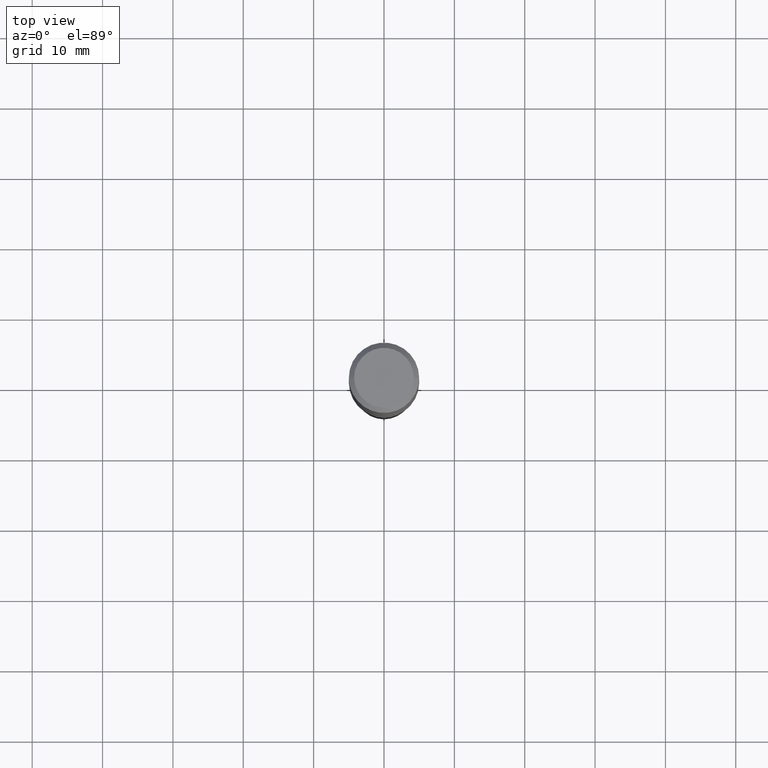
[diagram: clean part render]
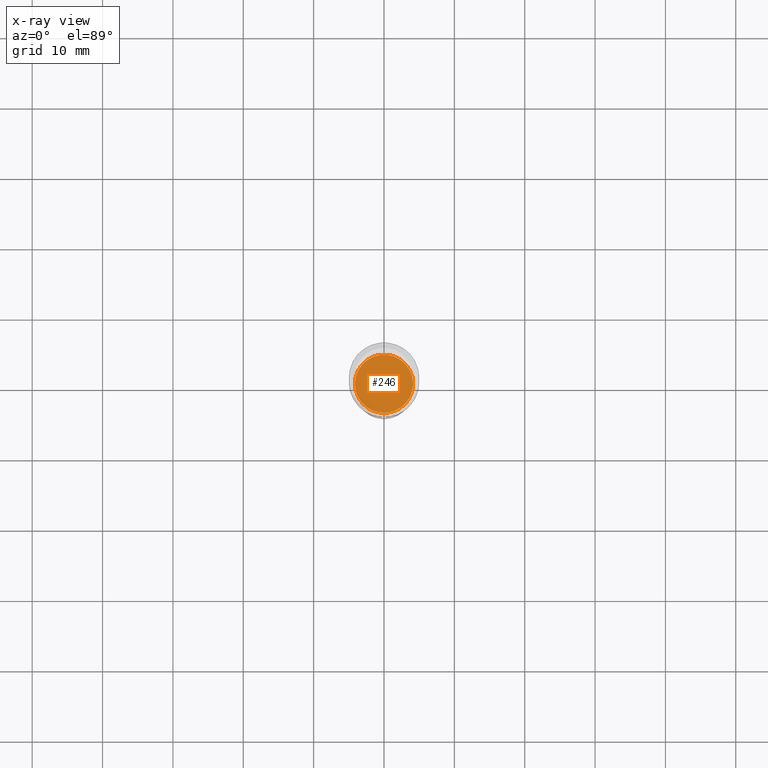
[diagram: x-ray — body ghosted, one internal face saturated and labeled with its STEP entity id]
A machine part, top view, then the same camera in x-ray: the body is ghosted and one INTERNAL B-rep face — a face not visible from any outside direction — is saturated and labeled: STEP entity #246.
In plain terms, the highlighted planar face has unit normal (-0, 0, 1).
Its self-contained STEP definition (entity closure, byte-faithful):
#11 = VERTEX_POINT ( 'NONE', #368 ) ;
#22 = CARTESIAN_POINT ( 'NONE',  ( 0.1628999999999999893, -8.051705115506173515E-15, -1.980299999999999949 ) ) ;
#105 = CARTESIAN_POINT ( 'NONE',  ( 4.842761876888425335E-29, -6.914180495311080769E-15, -1.980299999999999949 ) ) ;
#110 = CIRCLE ( 'NONE', #463, 0.1628999999999999893 ) ;
#114 = DIRECTION ( 'NONE',  ( -2.438088387897960049E-29, 3.491481338843145188E-15, 1.000000000000000000 ) ) ;
#116 = CARTESIAN_POINT ( 'NONE',  ( 4.842761876888425335E-29, -6.914180495311080769E-15, -1.980299999999999949 ) ) ;
#119 = DIRECTION ( 'NONE',  ( -2.445468806185136597E-29, 3.491481338843145583E-15, 1.000000000000000000 ) ) ;
#146 = ORIENTED_EDGE ( 'NONE', *, *, #390, .F. ) ;
#219 = AXIS2_PLACEMENT_3D ( 'NONE', #448, #119, #338 ) ;
#234 = DIRECTION ( 'NONE',  ( -2.445468806185136597E-29, 3.491481338843145583E-15, 1.000000000000000000 ) ) ;
#246 = ADVANCED_FACE ( 'NONE', ( #413 ), #439, .F. ) ;
#285 = VERTEX_POINT ( 'NONE', #22 ) ;
#338 = DIRECTION ( 'NONE',  ( 1.000000000000000000, -6.982962677686269077E-15, 0.000000000000000000 ) ) ;
#339 = DIRECTION ( 'NONE',  ( 1.000000000000000000, -6.982962677686269077E-15, 0.000000000000000000 ) ) ;
#365 = AXIS2_PLACEMENT_3D ( 'NONE', #105, #114, #476 ) ;
#368 = CARTESIAN_POINT ( 'NONE',  ( -0.1628999999999999893, -5.754057151583766836E-15, -1.980299999999999949 ) ) ;
#384 = ORIENTED_EDGE ( 'NONE', *, *, #450, .F. ) ;
#390 = EDGE_CURVE ( 'NONE', #11, #285, #480, .T. ) ;
#398 = EDGE_LOOP ( 'NONE', ( #384, #146 ) ) ;
#413 = FACE_OUTER_BOUND ( 'NONE', #398, .T. ) ;
#439 = PLANE ( 'NONE',  #365 ) ;
#448 = CARTESIAN_POINT ( 'NONE',  ( 4.842761876888425335E-29, -6.914180495311080769E-15, -1.980299999999999949 ) ) ;
#450 = EDGE_CURVE ( 'NONE', #285, #11, #110, .T. ) ;
#463 = AXIS2_PLACEMENT_3D ( 'NONE', #116, #234, #339 ) ;
#476 = DIRECTION ( 'NONE',  ( 1.000000000000000000, -6.982962677686265922E-15, 4.876176775795935793E-29 ) ) ;
#480 = CIRCLE ( 'NONE', #219, 0.1628999999999999893 ) ;